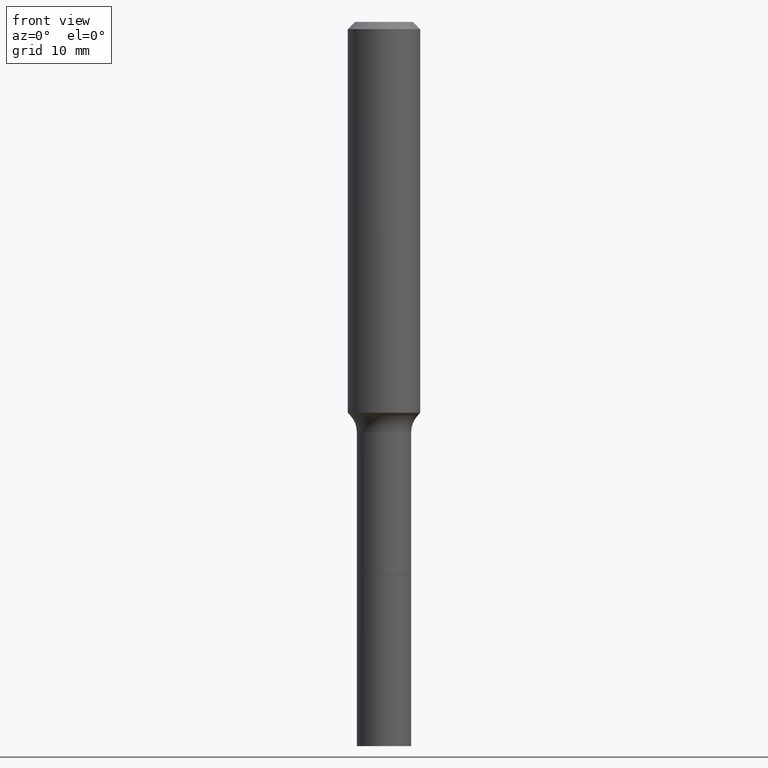
[diagram: clean part render]
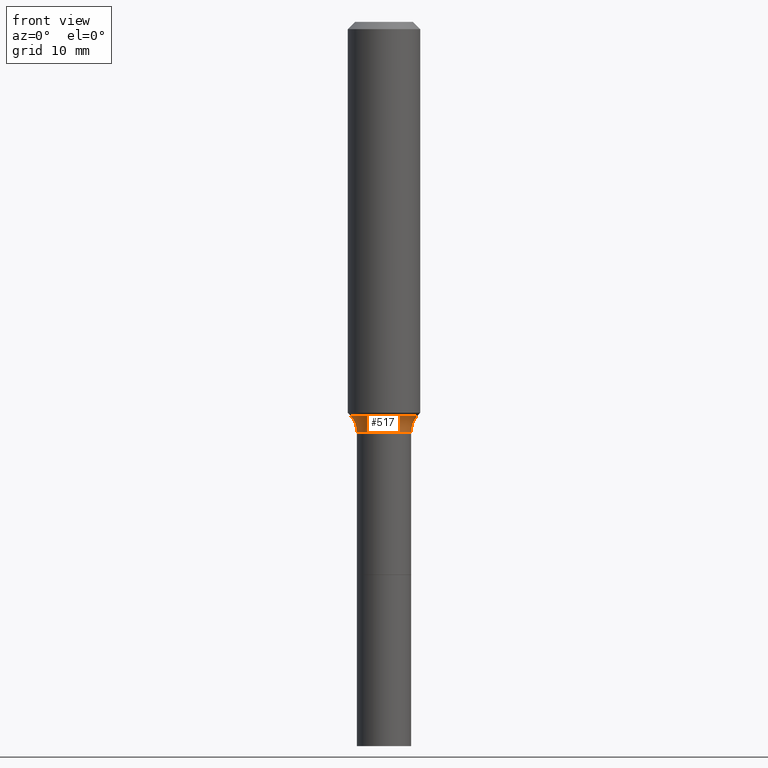
[diagram: same view with one face highlighted and labeled with its STEP entity id]
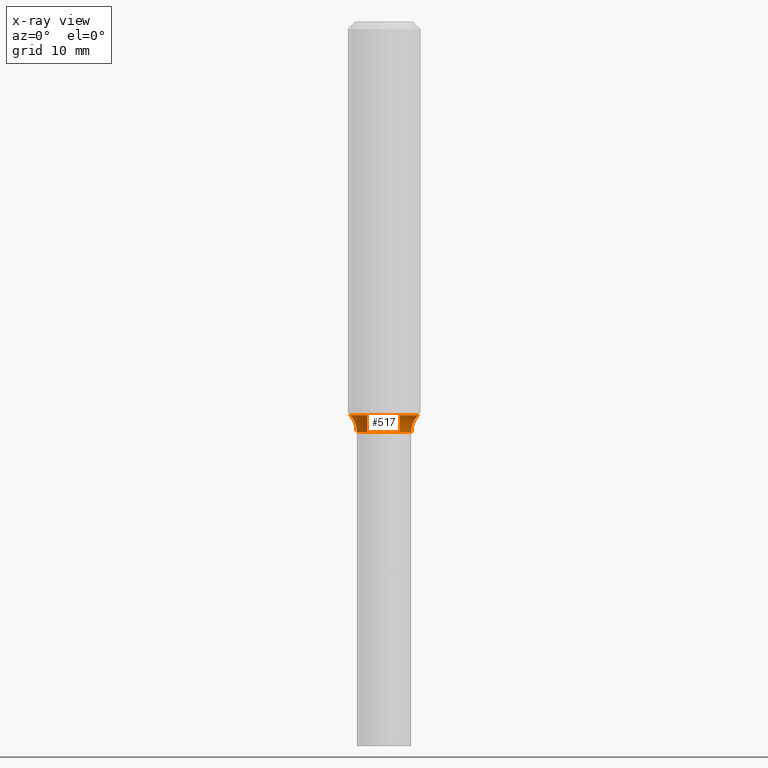
[diagram: x-ray of the same camera — body ghosted, the highlighted face saturated]
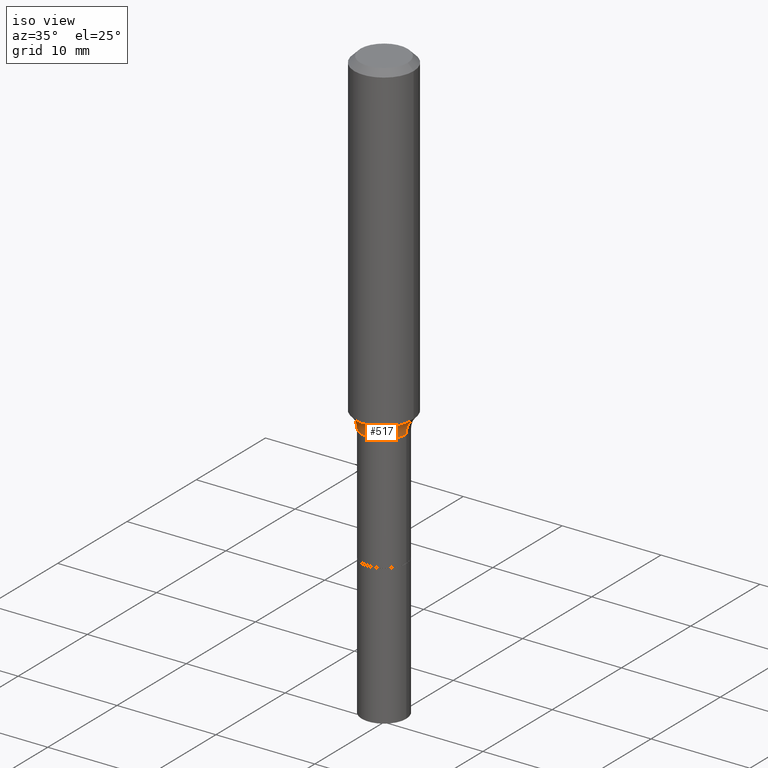
[diagram: same view with one face highlighted and labeled with its STEP entity id]
A machine part, front view. The second image highlights one B-rep face of the part: STEP entity #517.
The next image is the same camera in x-ray: the body ghosted, the highlighted face saturated — about 0% of this face is hidden behind the body in this view.
A second angle (iso view) of the same face is appended — the face is thin or edge-on in the first view.
In plain terms, the highlighted toroidal blend (fillet) surface has major radius 4.2824 mm and minor (blend) radius 2.032 mm.
Its self-contained STEP definition (entity closure, byte-faithful):
#6 = DIRECTION ( 'NONE',  ( -2.445468806185136597E-29, 3.491481338843145583E-15, 1.000000000000000000 ) ) ;
#9 = FACE_OUTER_BOUND ( 'NONE', #167, .T. ) ;
#15 = DIRECTION ( 'NONE',  ( -6.982962677686266711E-15, -1.000000000000000000, 3.491481338843145583E-15 ) ) ;
#37 = DIRECTION ( 'NONE',  ( 7.105427357601001859E-15, 1.000000000000000000, -3.491481338843145583E-15 ) ) ;
#64 = AXIS2_PLACEMENT_3D ( 'NONE', #366, #6, #165 ) ;
#72 = CIRCLE ( 'NONE', #265, 0.08000000000000007105 ) ;
#86 = CARTESIAN_POINT ( 'NONE',  ( 3.272526356436949336E-29, -4.672300327639896745E-15, -1.338200000000000056 ) ) ;
#93 = CARTESIAN_POINT ( 'NONE',  ( 0.1685999999999999444, -5.849627835097801350E-15, -1.338200000000000056 ) ) ;
#98 = EDGE_CURVE ( 'NONE', #241, #170, #308, .T. ) ;
#104 = CARTESIAN_POINT ( 'NONE',  ( -0.08859999999999994269, -4.853656004702769040E-15, -1.338200000000000056 ) ) ;
#108 = CARTESIAN_POINT ( 'NONE',  ( -0.1685999999999999444, -3.474325275148368424E-15, -1.338200000000000056 ) ) ;
#117 = ORIENTED_EDGE ( 'NONE', *, *, #425, .T. ) ;
#126 = CIRCLE ( 'NONE', #177, 0.08000000000000007105 ) ;
#150 = CARTESIAN_POINT ( 'NONE',  ( -0.1100917038704663092, -3.699556959331390155E-15, -1.283640131194999867 ) ) ;
#165 = DIRECTION ( 'NONE',  ( 1.000000000000000000, -6.982962677686269866E-15, 0.000000000000000000 ) ) ;
#167 = EDGE_LOOP ( 'NONE', ( #312, #117, #342, #345 ) ) ;
#170 = VERTEX_POINT ( 'NONE', #319 ) ;
#177 = AXIS2_PLACEMENT_3D ( 'NONE', #108, #37, #311 ) ;
#185 = DIRECTION ( 'NONE',  ( -2.445468806185136597E-29, 3.491481338843145583E-15, 1.000000000000000000 ) ) ;
#188 = CIRCLE ( 'NONE', #489, 0.08859999999999994269 ) ;
#241 = VERTEX_POINT ( 'NONE', #150 ) ;
#259 = TOROIDAL_SURFACE ( 'NONE', #483, 0.1685999999999999444, 0.08000000000000007105 ) ;
#265 = AXIS2_PLACEMENT_3D ( 'NONE', #93, #15, #498 ) ;
#297 = VERTEX_POINT ( 'NONE', #104 ) ;
#308 = CIRCLE ( 'NONE', #64, 0.1100917038704661705 ) ;
#311 = DIRECTION ( 'NONE',  ( -1.000000000000000000, 7.105427357601005014E-15, 0.000000000000000000 ) ) ;
#312 = ORIENTED_EDGE ( 'NONE', *, *, #98, .F. ) ;
#318 = CARTESIAN_POINT ( 'NONE',  ( 0.08859999999999994269, -5.290990820882899698E-15, -1.338200000000000056 ) ) ;
#319 = CARTESIAN_POINT ( 'NONE',  ( 0.1100917038704663092, -5.250571823107863583E-15, -1.283640131194999867 ) ) ;
#342 = ORIENTED_EDGE ( 'NONE', *, *, #359, .T. ) ;
#345 = ORIENTED_EDGE ( 'NONE', *, *, #508, .F. ) ;
#359 = EDGE_CURVE ( 'NONE', #297, #493, #188, .T. ) ;
#366 = CARTESIAN_POINT ( 'NONE',  ( 3.139101899204768444E-29, -4.481805563857509473E-15, -1.283640131194999867 ) ) ;
#383 = DIRECTION ( 'NONE',  ( 1.000000000000000000, -6.982962677686262766E-15, 0.000000000000000000 ) ) ;
#425 = EDGE_CURVE ( 'NONE', #241, #297, #126, .T. ) ;
#451 = DIRECTION ( 'NONE',  ( 1.000000000000000000, -6.982962677686266711E-15, 4.883557194083112901E-29 ) ) ;
#483 = AXIS2_PLACEMENT_3D ( 'NONE', #86, #496, #451 ) ;
#489 = AXIS2_PLACEMENT_3D ( 'NONE', #512, #185, #383 ) ;
#493 = VERTEX_POINT ( 'NONE', #318 ) ;
#496 = DIRECTION ( 'NONE',  ( -2.445468806185136597E-29, 3.491481338843145583E-15, 1.000000000000000000 ) ) ;
#498 = DIRECTION ( 'NONE',  ( 1.000000000000000000, -6.982962677686265922E-15, 0.000000000000000000 ) ) ;
#508 = EDGE_CURVE ( 'NONE', #170, #493, #72, .T. ) ;
#512 = CARTESIAN_POINT ( 'NONE',  ( 3.272526356436949336E-29, -4.672300327639896745E-15, -1.338200000000000056 ) ) ;
#517 = ADVANCED_FACE ( 'NONE', ( #9 ), #259, .F. ) ;